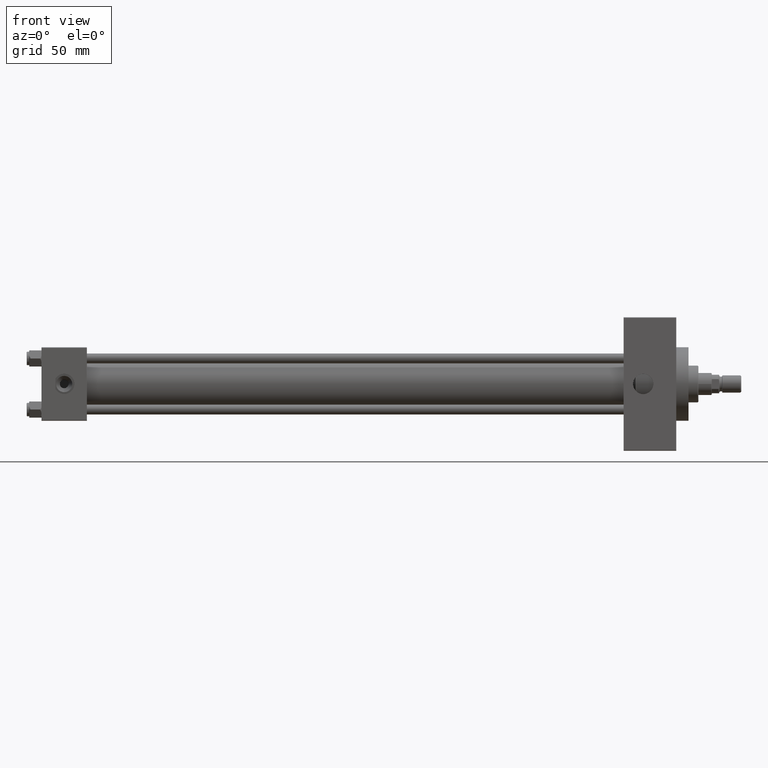
[diagram: clean part render]
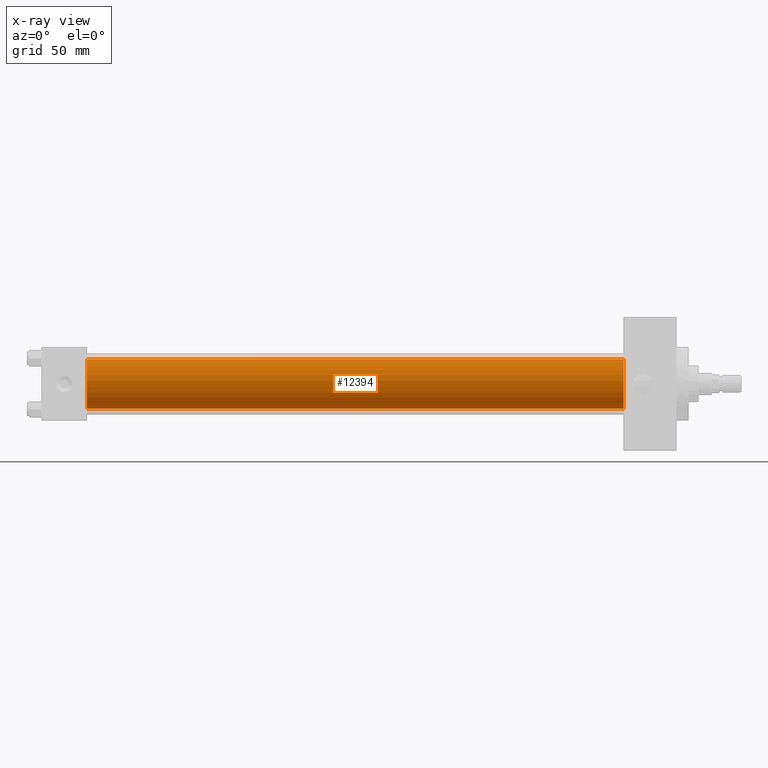
[diagram: x-ray — body ghosted, one internal face saturated and labeled with its STEP entity id]
A machine part, front view, then the same camera in x-ray: the body is ghosted and one INTERNAL B-rep face — a face not visible from any outside direction — is saturated and labeled: STEP entity #12394.
In plain terms, the highlighted cylindrical surface (edge-blend (fillet) strip) has radius 20 mm, axis along (-1, -0, -0).
Its self-contained STEP definition (entity closure, byte-faithful):
#2437 = CARTESIAN_POINT ( 'NONE',  ( 475.0000000000000000, -1.527916156705042519E-16, -20.00000000000000000 ) ) ;
#4575 = CARTESIAN_POINT ( 'NONE',  ( 37.00000000000000000, -2.602085213965210642E-15, 0.000000000000000000 ) ) ;
#5070 = DIRECTION ( 'NONE',  ( 1.000000000000000000, 0.000000000000000000, 0.000000000000000000 ) ) ;
#7365 = DIRECTION ( 'NONE',  ( 0.000000000000000000, 0.000000000000000000, -1.000000000000000000 ) ) ;
#7617 = CARTESIAN_POINT ( 'NONE',  ( 475.0000000000000000, -2.602085213965210642E-15, 0.000000000000000000 ) ) ;
#9118 = DIRECTION ( 'NONE',  ( -1.000000000000000000, -0.000000000000000000, -0.000000000000000000 ) ) ;
#10815 = VECTOR ( 'NONE', #33347, 1000.000000000000000 ) ;
#12263 = EDGE_CURVE ( 'NONE', #49736, #45775, #12894, .T. ) ;
#12394 = ADVANCED_FACE ( 'NONE', ( #33913 ), #42224, .F. ) ;
#12894 = LINE ( 'NONE', #24223, #30032 ) ;
#13985 = LINE ( 'NONE', #48215, #10815 ) ;
#14722 = EDGE_CURVE ( 'NONE', #19696, #37409, #13985, .T. ) ;
#14796 = CARTESIAN_POINT ( 'NONE',  ( 475.0000000000000000, -2.602085213965210642E-15, 0.000000000000000000 ) ) ;
#15239 = EDGE_CURVE ( 'NONE', #49736, #19696, #39822, .T. ) ;
#17416 = CARTESIAN_POINT ( 'NONE',  ( 475.0000000000000000, -2.602085213965210642E-15, 20.00000000000000000 ) ) ;
#18127 = AXIS2_PLACEMENT_3D ( 'NONE', #7617, #46119, #7365 ) ;
#19160 = ORIENTED_EDGE ( 'NONE', *, *, #14722, .T. ) ;
#19696 = VERTEX_POINT ( 'NONE', #2437 ) ;
#23583 = CARTESIAN_POINT ( 'NONE',  ( 37.00000000000000000, -2.602085213965210642E-15, 20.00000000000000000 ) ) ;
#24062 = AXIS2_PLACEMENT_3D ( 'NONE', #4575, #5070, #35258 ) ;
#24223 = CARTESIAN_POINT ( 'NONE',  ( 475.0000000000000000, -2.602085213965210642E-15, 20.00000000000000000 ) ) ;
#30032 = VECTOR ( 'NONE', #9118, 1000.000000000000000 ) ;
#30146 = DIRECTION ( 'NONE',  ( -1.000000000000000000, -0.000000000000000000, -0.000000000000000000 ) ) ;
#33347 = DIRECTION ( 'NONE',  ( -1.000000000000000000, -0.000000000000000000, -0.000000000000000000 ) ) ;
#33913 = FACE_OUTER_BOUND ( 'NONE', #45430, .T. ) ;
#34860 = AXIS2_PLACEMENT_3D ( 'NONE', #14796, #30146, #45492 ) ;
#35258 = DIRECTION ( 'NONE',  ( 0.000000000000000000, 0.000000000000000000, -1.000000000000000000 ) ) ;
#35699 = ORIENTED_EDGE ( 'NONE', *, *, #15239, .T. ) ;
#37409 = VERTEX_POINT ( 'NONE', #48293 ) ;
#39822 = CIRCLE ( 'NONE', #18127, 20.00000000000000000 ) ;
#42224 = CYLINDRICAL_SURFACE ( 'NONE', #34860, 20.00000000000000000 ) ;
#42630 = ORIENTED_EDGE ( 'NONE', *, *, #12263, .F. ) ;
#44914 = CIRCLE ( 'NONE', #24062, 20.00000000000000000 ) ;
#45430 = EDGE_LOOP ( 'NONE', ( #35699, #19160, #45878, #42630 ) ) ;
#45492 = DIRECTION ( 'NONE',  ( 0.000000000000000000, 0.000000000000000000, 1.000000000000000000 ) ) ;
#45775 = VERTEX_POINT ( 'NONE', #23583 ) ;
#45878 = ORIENTED_EDGE ( 'NONE', *, *, #47265, .F. ) ;
#46119 = DIRECTION ( 'NONE',  ( 1.000000000000000000, 0.000000000000000000, 0.000000000000000000 ) ) ;
#47265 = EDGE_CURVE ( 'NONE', #45775, #37409, #44914, .T. ) ;
#48215 = CARTESIAN_POINT ( 'NONE',  ( 475.0000000000000000, -1.527916156705042519E-16, -20.00000000000000000 ) ) ;
#48293 = CARTESIAN_POINT ( 'NONE',  ( 37.00000000000000000, -1.527916156705042519E-16, -20.00000000000000000 ) ) ;
#49736 = VERTEX_POINT ( 'NONE', #17416 ) ;